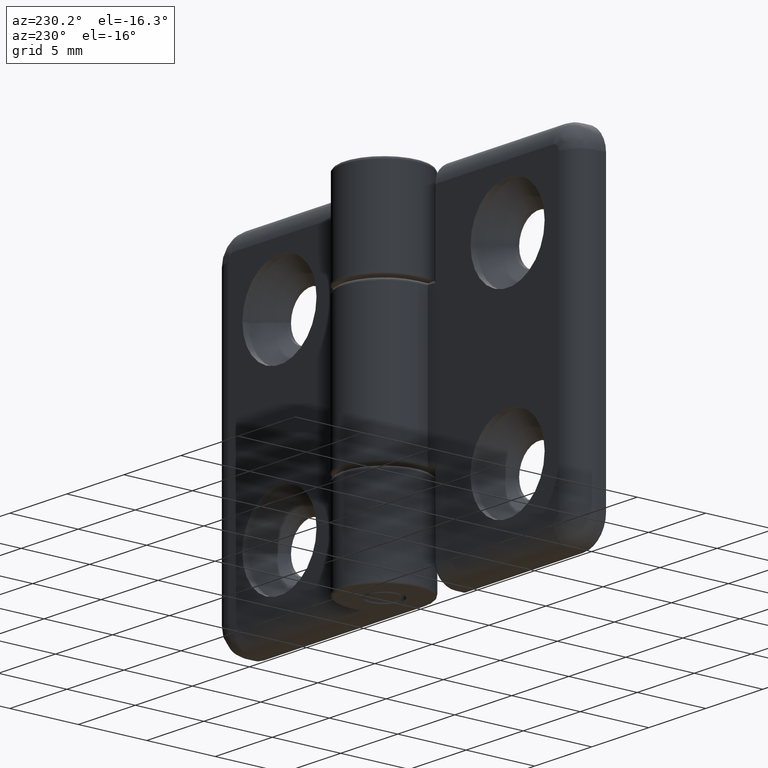
[diagram: clean part render]
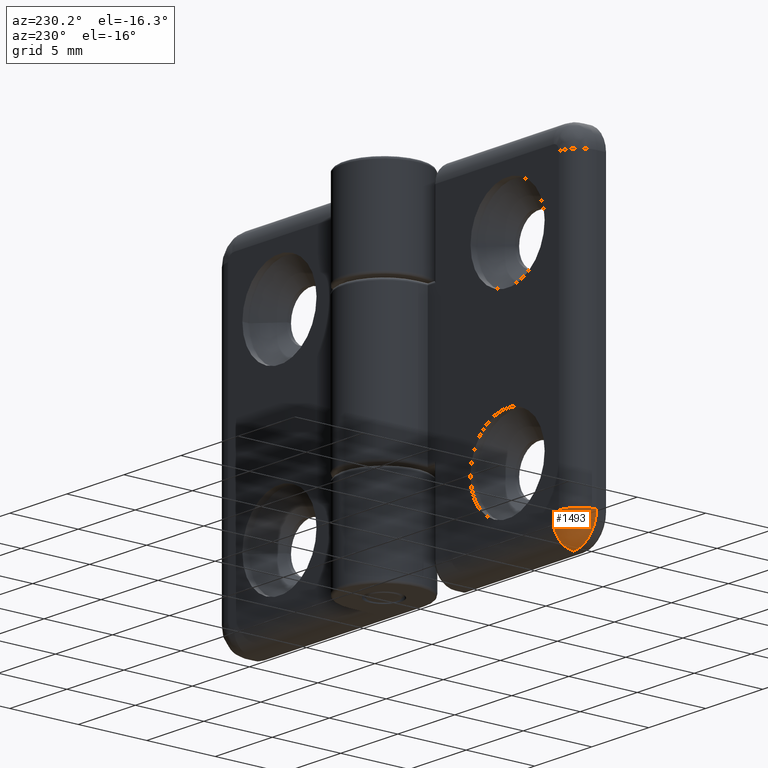
[diagram: same view with one face highlighted and labeled with its STEP entity id]
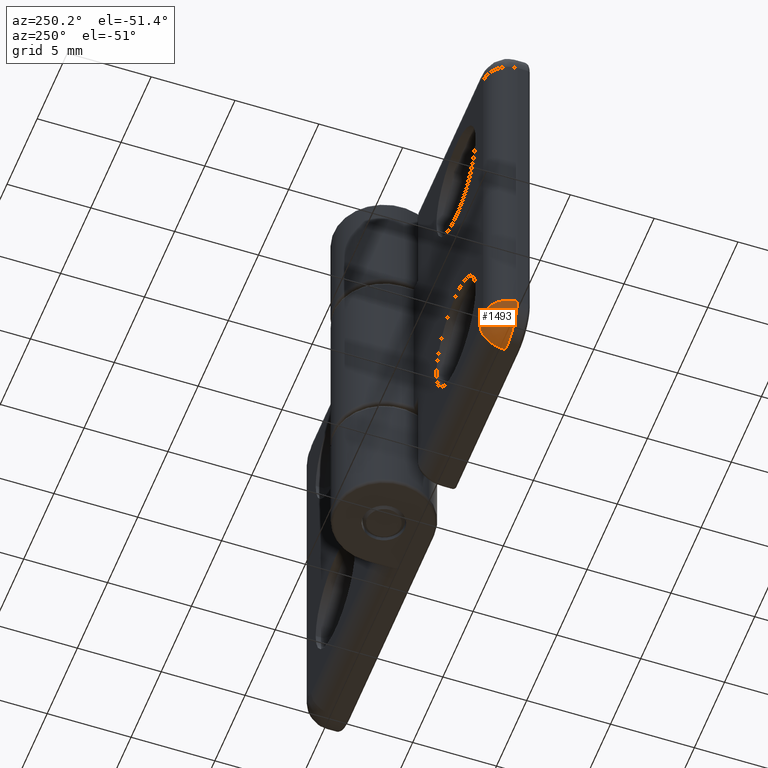
[diagram: same view with one face highlighted and labeled with its STEP entity id]
A machine part, auxiliary view. The second image highlights one B-rep face of the part: STEP entity #1493.
A second angle (auxiliary view) of the same face is appended — the face is thin or edge-on in the first view.
In plain terms, the highlighted face is a freeform B-spline surface patch.
Its self-contained STEP definition (entity closure, byte-faithful):
#49=(
BOUNDED_SURFACE()
B_SPLINE_SURFACE(2,2,((#2660,#2661,#2662),(#2663,#2664,#2665),(#2666,#2667,
#2668)),.UNSPECIFIED.,.F.,.F.,.F.)
B_SPLINE_SURFACE_WITH_KNOTS((3,3),(3,3),(2.21485283274311E-12,1.57079632679903),
(-1.26256061378855E-11,1.57079632680633),.UNSPECIFIED.)
GEOMETRIC_REPRESENTATION_ITEM()
RATIONAL_B_SPLINE_SURFACE(((1.,0.70710678117804,1.),(0.707106781185872,
0.499999999993507,0.707106781185872),(1.,0.70710678117804,1.)))
REPRESENTATION_ITEM('')
SURFACE()
);
#209=FACE_OUTER_BOUND('',#329,.T.);
#329=EDGE_LOOP('',(#1324,#1325,#1326,#1327));
#611=CIRCLE('',#1671,1.5);
#612=CIRCLE('',#1674,2.);
#615=CIRCLE('',#1682,0.5);
#623=CIRCLE('',#1694,1.5);
#737=VERTEX_POINT('',#2602);
#738=VERTEX_POINT('',#2604);
#739=VERTEX_POINT('',#2610);
#743=VERTEX_POINT('',#2628);
#925=EDGE_CURVE('',#737,#738,#611,.T.);
#929=EDGE_CURVE('',#739,#737,#612,.F.);
#937=EDGE_CURVE('',#743,#738,#615,.T.);
#949=EDGE_CURVE('',#743,#739,#623,.T.);
#1324=ORIENTED_EDGE('',*,*,#929,.F.);
#1325=ORIENTED_EDGE('',*,*,#949,.F.);
#1326=ORIENTED_EDGE('',*,*,#937,.T.);
#1327=ORIENTED_EDGE('',*,*,#925,.F.);
#1493=ADVANCED_FACE('',(#209),#49,.F.);
#1671=AXIS2_PLACEMENT_3D('',#2605,#2118,#2119);
#1674=AXIS2_PLACEMENT_3D('',#2612,#2127,#2128);
#1682=AXIS2_PLACEMENT_3D('',#2629,#2148,#2149);
#1694=AXIS2_PLACEMENT_3D('',#2669,#2176,#2177);
#2118=DIRECTION('center_axis',(-1.,0.,0.));
#2119=DIRECTION('ref_axis',(0.,0.,1.));
#2127=DIRECTION('center_axis',(0.,1.,0.));
#2128=DIRECTION('ref_axis',(1.,0.,0.));
#2148=DIRECTION('center_axis',(0.,-1.,0.));
#2149=DIRECTION('ref_axis',(0.707106781186548,0.,0.707106781186548));
#2176=DIRECTION('center_axis',(0.,0.,-1.));
#2177=DIRECTION('ref_axis',(0.,1.,0.));
#2602=CARTESIAN_POINT('',(14.,-2.2,12.5));
#2604=CARTESIAN_POINT('',(14.,-0.699999999999999,11.));
#2605=CARTESIAN_POINT('Origin',(14.,-2.2,11.));
#2610=CARTESIAN_POINT('',(16.,-2.2,10.5));
#2612=CARTESIAN_POINT('Origin',(14.,-2.2,10.5));
#2628=CARTESIAN_POINT('',(14.5,-0.699999999999999,10.5));
#2629=CARTESIAN_POINT('Origin',(14.,-0.699999999999999,10.5));
#2660=CARTESIAN_POINT('Ctrl Pts',(13.9999999999773,-2.2,12.5000000000001));
#2661=CARTESIAN_POINT('Ctrl Pts',(16.0000000000232,-2.20000000000503,12.5000000000254));
#2662=CARTESIAN_POINT('Ctrl Pts',(16.0000000000003,-2.20000000000049,10.4999999999794));
#2663=CARTESIAN_POINT('Ctrl Pts',(13.9999999999811,-0.699999999996974,12.5000000000002));
#2664=CARTESIAN_POINT('Ctrl Pts',(16.0000000000236,-0.700000000002002,12.5000000000254));
#2665=CARTESIAN_POINT('Ctrl Pts',(16.0000000000008,-0.699999999997466,10.4999999999828));
#2666=CARTESIAN_POINT('Ctrl Pts',(14.,-0.699999999999772,10.9999999999972));
#2667=CARTESIAN_POINT('Ctrl Pts',(14.5000000000035,-0.700000000001029,11.0000000000035));
#2668=CARTESIAN_POINT('Ctrl Pts',(14.4999999999978,-0.699999999999895,10.5));
#2669=CARTESIAN_POINT('Origin',(14.5,-2.2,10.5));